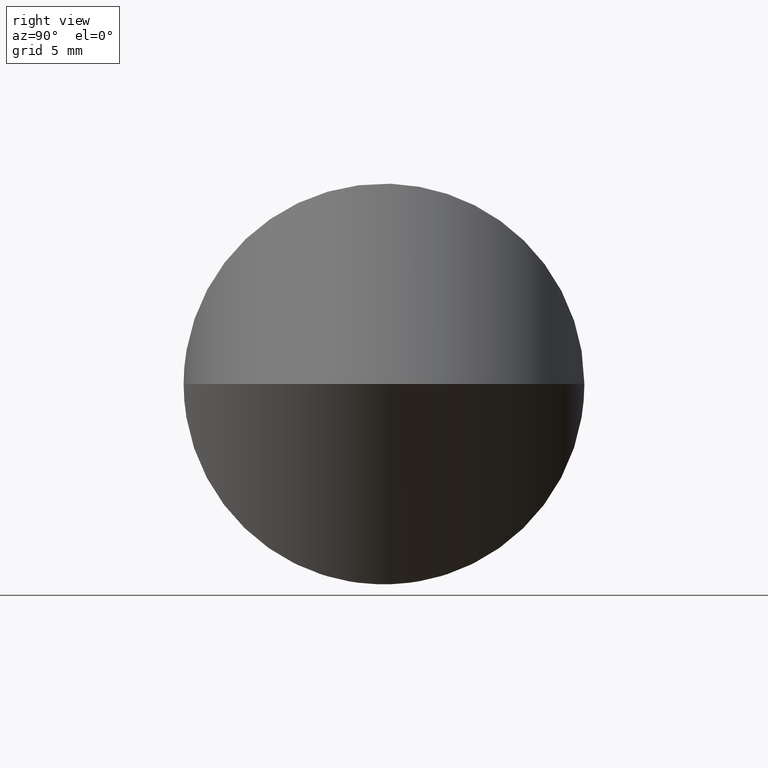
[diagram: clean part render]
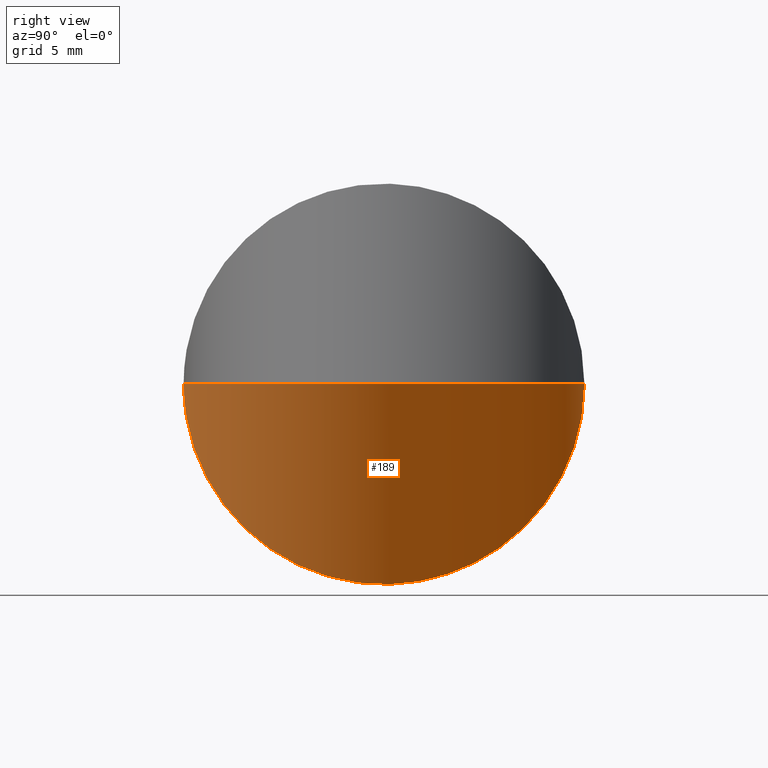
[diagram: same view with one face highlighted and labeled with its STEP entity id]
A machine part, right view. The second image highlights one B-rep face of the part: STEP entity #189.
In plain terms, the highlighted cylindrical surface (partial cylindrical patch) has radius 12.5 mm, axis along (0.5, -0, 0.866).
Its self-contained STEP definition (entity closure, byte-faithful):
#5 = VERTEX_POINT ( 'NONE', #180 ) ;
#6 = EDGE_CURVE ( 'NONE', #71, #5, #264, .T. ) ;
#26 = CARTESIAN_POINT ( 'NONE',  ( 14.43375672974068102, 12.50000000000000533, -25.00000000000000000 ) ) ;
#28 = CARTESIAN_POINT ( 'NONE',  ( -3.469446951953614189E-15, 12.50000000000000000, 0.000000000000000000 ) ) ;
#48 = EDGE_CURVE ( 'NONE', #71, #5, #128, .T. ) ;
#49 = CARTESIAN_POINT ( 'NONE',  ( 28.86751345948130520, 12.50000000000001599, 1.005671978138651586E-13 ) ) ;
#71 = VERTEX_POINT ( 'NONE', #164 ) ;
#73 = CARTESIAN_POINT ( 'NONE',  ( -3.469446951953614189E-15, 12.50000000000000000, 0.000000000000000000 ) ) ;
#75 = CARTESIAN_POINT ( 'NONE',  ( 3.469446951953614189E-15, -12.50000000000000000, 1.734723475976807094E-15 ) ) ;
#104 = DIRECTION ( 'NONE',  ( 0.8660254037844398178, 2.651438096812270862E-16, -0.4999999999999979461 ) ) ;
#114 = FACE_OUTER_BOUND ( 'NONE', #236, .T. ) ;
#117 = CARTESIAN_POINT ( 'NONE',  ( 0.000000000000000000, 0.000000000000000000, 0.000000000000000000 ) ) ;
#128 =( BOUNDED_CURVE ( )  B_SPLINE_CURVE ( 3, ( #28, #49, #257, #197 ),
 .UNSPECIFIED., .F., .T. ) 
 B_SPLINE_CURVE_WITH_KNOTS ( ( 4, 4 ),
 ( 4.712388980384689674, 7.853981633974482790 ),
 .UNSPECIFIED. ) 
 CURVE ( )  GEOMETRIC_REPRESENTATION_ITEM ( )  RATIONAL_B_SPLINE_CURVE ( ( 1.000000000000000000, 0.3333333333333333703, 0.3333333333333333703, 1.000000000000000000 ) ) 
 REPRESENTATION_ITEM ( '' )  );
#144 = ORIENTED_EDGE ( 'NONE', *, *, #6, .F. ) ;
#164 = CARTESIAN_POINT ( 'NONE',  ( -3.469446951953614189E-15, 12.50000000000000000, 0.000000000000000000 ) ) ;
#178 = CYLINDRICAL_SURFACE ( 'NONE', #253, 12.50000000000000178 ) ;
#180 = CARTESIAN_POINT ( 'NONE',  ( 3.469446951953614189E-15, -12.50000000000000000, 1.734723475976807094E-15 ) ) ;
#189 = ADVANCED_FACE ( 'NONE', ( #114 ), #178, .T. ) ;
#193 = ORIENTED_EDGE ( 'NONE', *, *, #48, .T. ) ;
#197 = CARTESIAN_POINT ( 'NONE',  ( 3.469446951953614189E-15, -12.50000000000000000, 1.734723475976807094E-15 ) ) ;
#217 = CARTESIAN_POINT ( 'NONE',  ( 14.43375672974068458, -12.49999999999999467, -25.00000000000000000 ) ) ;
#236 = EDGE_LOOP ( 'NONE', ( #193, #144 ) ) ;
#240 = DIRECTION ( 'NONE',  ( 0.4999999999999980016, -1.530808498934197734E-16, 0.8660254037844398178 ) ) ;
#253 = AXIS2_PLACEMENT_3D ( 'NONE', #117, #240, #104 ) ;
#257 = CARTESIAN_POINT ( 'NONE',  ( 28.86751345948131586, -12.49999999999999112, 9.172907082449091971E-14 ) ) ;
#264 =( BOUNDED_CURVE ( )  B_SPLINE_CURVE ( 3, ( #73, #26, #217, #75 ),
 .UNSPECIFIED., .F., .T. ) 
 B_SPLINE_CURVE_WITH_KNOTS ( ( 4, 4 ),
 ( 4.712388980384689674, 7.853981633974482790 ),
 .UNSPECIFIED. ) 
 CURVE ( )  GEOMETRIC_REPRESENTATION_ITEM ( )  RATIONAL_B_SPLINE_CURVE ( ( 1.000000000000000000, 0.3333333333333333703, 0.3333333333333333703, 1.000000000000000000 ) ) 
 REPRESENTATION_ITEM ( '' )  );